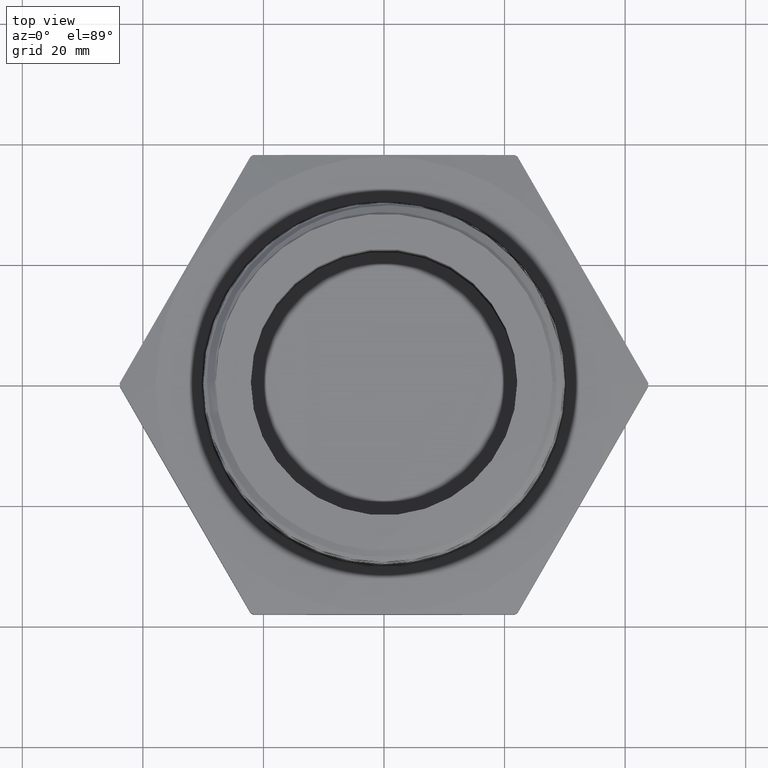
[diagram: clean part render]
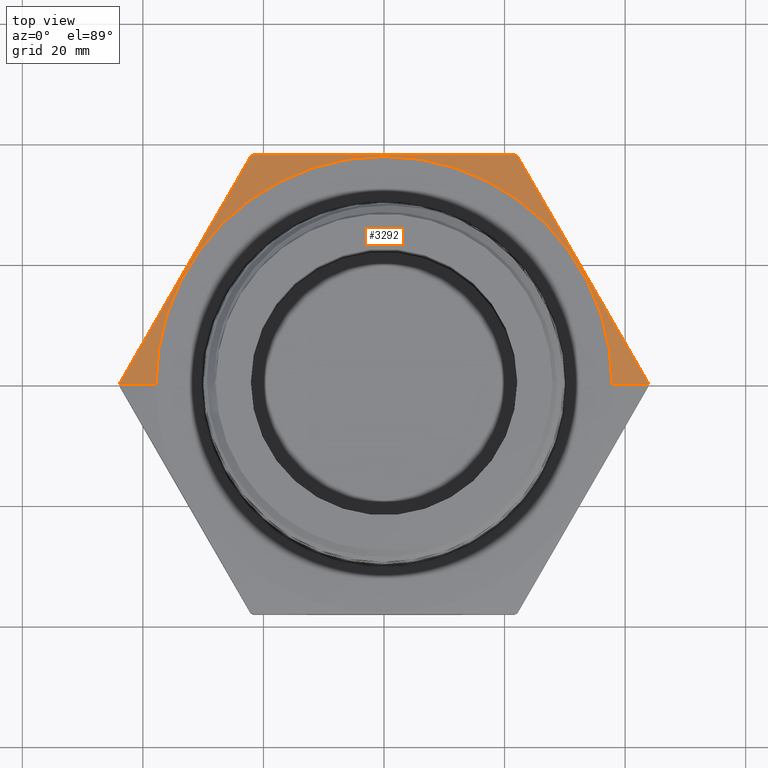
[diagram: same view with one face highlighted and labeled with its STEP entity id]
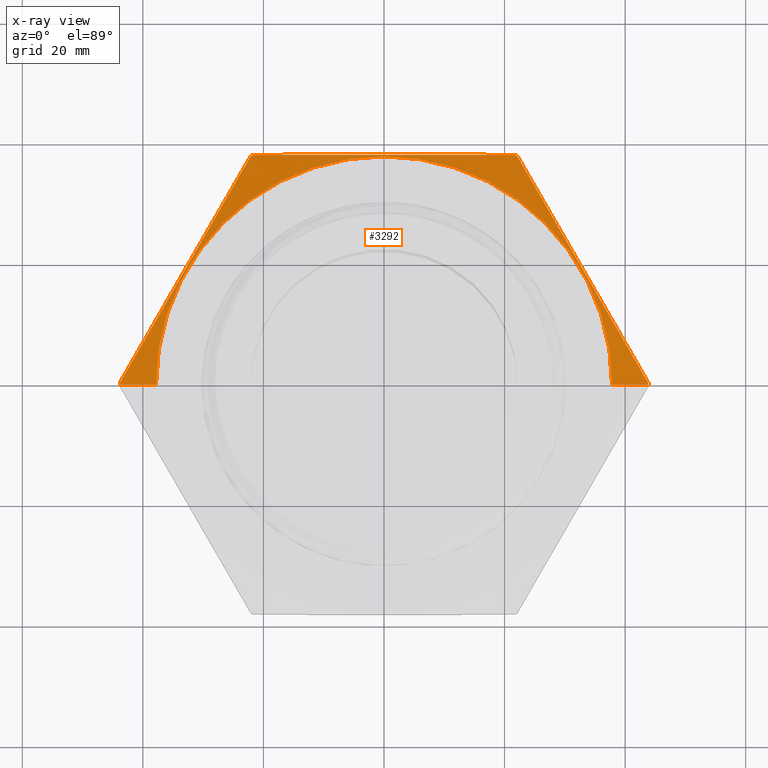
[diagram: x-ray of the same camera — body ghosted, the highlighted face saturated]
A machine part, top view. The second image highlights one B-rep face of the part: STEP entity #3292.
The next image is the same camera in x-ray: the body ghosted, the highlighted face saturated — about 0% of this face is hidden behind the body in this view.
In plain terms, the highlighted conical surface has half-angle 78 deg.
Its self-contained STEP definition (entity closure, byte-faithful):
#195 = VERTEX_POINT ( 'NONE', #895 ) ;
#196 = VERTEX_POINT ( 'NONE', #896 ) ;
#200 = VERTEX_POINT ( 'NONE', #900 ) ;
#202 = VERTEX_POINT ( 'NONE', #902 ) ;
#204 = VERTEX_POINT ( 'NONE', #904 ) ;
#205 = VERTEX_POINT ( 'NONE', #905 ) ;
#206 = VERTEX_POINT ( 'NONE', #906 ) ;
#207 = VERTEX_POINT ( 'NONE', #907 ) ;
#208 = VERTEX_POINT ( 'NONE', #909 ) ;
#209 = VERTEX_POINT ( 'NONE', #911 ) ;
#806 = DIRECTION ( 'NONE',  ( -1.000000000000000000, 0.0000000000000000000, 1.375091271978655600E-016 ) ) ;
#807 = CARTESIAN_POINT ( 'NONE',  ( 4.141455608242866600E-017, 0.0000000000000000000, 0.3299999999999998500 ) ) ;
#808 = DIRECTION ( 'NONE',  ( -1.254986547952384500E-016, -0.0000000000000000000, -1.000000000000000000 ) ) ;
#870 = EDGE_LOOP ( 'NONE', ( #2915, #2916, #2917, #2918, #2919, #2920, #2921, #2922, #2923, #2924 ) ) ;
#895 = CARTESIAN_POINT ( 'NONE',  ( 1.490000000000000400, 1.824723730729556900E-016, 0.3299999999999996300 ) ) ;
#896 = CARTESIAN_POINT ( 'NONE',  ( -1.490000000000000400, 0.0000000000000000000, 0.3300000000000000200 ) ) ;
#900 = CARTESIAN_POINT ( 'NONE',  ( 0.8720570199394855900, 1.489552934367704800, 0.2798258519637287200 ) ) ;
#902 = CARTESIAN_POINT ( 'NONE',  ( -0.8539621714743428300, 1.500000000000000400, 0.2798258519637289400 ) ) ;
#904 = CARTESIAN_POINT ( 'NONE',  ( 0.8539621714743428300, 1.500000000000000400, 0.2798258519637287200 ) ) ;
#905 = CARTESIAN_POINT ( 'NONE',  ( 1.726019191413829900, 0.01044706563229644500, 0.2798258519637286700 ) ) ;
#906 = CARTESIAN_POINT ( 'NONE',  ( 1.726050807568877900, 2.113802596654930500E-016, 0.2798258519637286700 ) ) ;
#907 = CARTESIAN_POINT ( 'NONE',  ( -0.8720570199394877000, 1.489552934367703600, 0.2798258519637289400 ) ) ;
#909 = CARTESIAN_POINT ( 'NONE',  ( -1.726019191413829900, 0.01044706563229740400, 0.2798258519637290600 ) ) ;
#911 = CARTESIAN_POINT ( 'NONE',  ( -1.726050807568878100, 0.0000000000000000000, 0.2798258519637290600 ) ) ;
#1565 = CARTESIAN_POINT ( 'NONE',  ( 4.141455608242866600E-017, 0.0000000000000000000, 0.3299999999999998500 ) ) ;
#1566 = DIRECTION ( 'NONE',  ( -1.254986547952384500E-016, -0.0000000000000000000, -1.000000000000000000 ) ) ;
#1567 = DIRECTION ( 'NONE',  ( -1.000000000000000000, 0.0000000000000000000, 1.375091271978655600E-016 ) ) ;
#1633 = CARTESIAN_POINT ( 'NONE',  ( -1.490000000000000400, 0.0000000000000000000, 0.3300000000000000200 ) ) ;
#1634 = DIRECTION ( 'NONE',  ( -0.9781476007338071300, 0.0000000000000000000, -0.2079116908177526300 ) ) ;
#1635 = DIRECTION ( 'NONE',  ( 0.9781476007338069100, 1.197885328332319900E-016, -0.2079116908177528500 ) ) ;
#1636 = CARTESIAN_POINT ( 'NONE',  ( 1.490000000000000400, 1.824723730729556900E-016, 0.3299999999999996300 ) ) ;
#1637 = CARTESIAN_POINT ( 'NONE',  ( 3.511776799837950400E-017, 0.0000000000000000000, 0.2798258519637288300 ) ) ;
#1638 = DIRECTION ( 'NONE',  ( -1.254986547952384500E-016, -0.0000000000000000000, -1.000000000000000000 ) ) ;
#1639 = DIRECTION ( 'NONE',  ( -1.000000000000000000, 0.0000000000000000000, 1.187036897328664900E-016 ) ) ;
#1640 = CARTESIAN_POINT ( 'NONE',  ( 0.8720570199394855900, 1.489552934367704800, 0.2798258519637287200 ) ) ;
#1641 = CARTESIAN_POINT ( 'NONE',  ( 0.9432205342290145300, 1.366294111973087600, 0.2947932723352763600 ) ) ;
#1645 = CARTESIAN_POINT ( 'NONE',  ( 1.014384048518543100, 1.243035289578469800, 0.3069262541747560500 ) ) ;
#1646 = CARTESIAN_POINT ( 'NONE',  ( 1.156711077097600100, 0.9965176447892351000, 0.3234912303191852500 ) ) ;
#1647 = CARTESIAN_POINT ( 'NONE',  ( 1.299038105676656700, 0.7500000000000002200, 0.3322576384474138500 ) ) ;
#1648 = CARTESIAN_POINT ( 'NONE',  ( 1.441365134255714800, 0.5034823552107656800, 0.3234912303191852000 ) ) ;
#1649 = CARTESIAN_POINT ( 'NONE',  ( 1.583692162834773100, 0.2569647104215312900, 0.3069262541747560500 ) ) ;
#1650 = CARTESIAN_POINT ( 'NONE',  ( 1.654855677124301900, 0.1337058880269140500, 0.2947932723352764700 ) ) ;
#1651 = CARTESIAN_POINT ( 'NONE',  ( 1.726019191413829900, 0.01044706563229644500, 0.2798258519637286700 ) ) ;
#1653 = CARTESIAN_POINT ( 'NONE',  ( 3.511776799837950400E-017, 0.0000000000000000000, 0.2798258519637288300 ) ) ;
#1654 = DIRECTION ( 'NONE',  ( -1.254986547952384500E-016, -0.0000000000000000000, -1.000000000000000000 ) ) ;
#1655 = DIRECTION ( 'NONE',  ( -1.000000000000000000, 0.0000000000000000000, 1.187036897328664900E-016 ) ) ;
#1656 = CARTESIAN_POINT ( 'NONE',  ( -0.8539621714743428300, 1.500000000000000400, 0.2798258519637289400 ) ) ;
#1661 = CARTESIAN_POINT ( 'NONE',  ( 3.511776799837950400E-017, 0.0000000000000000000, 0.2798258519637288300 ) ) ;
#1662 = DIRECTION ( 'NONE',  ( -1.254986547952384500E-016, -0.0000000000000000000, -1.000000000000000000 ) ) ;
#1663 = DIRECTION ( 'NONE',  ( -1.000000000000000000, 0.0000000000000000000, 1.187036897328664900E-016 ) ) ;
#1664 = CARTESIAN_POINT ( 'NONE',  ( -0.7117519578244634300, 1.500000000000000200, 0.2947809878228538300 ) ) ;
#1671 = CARTESIAN_POINT ( 'NONE',  ( -1.654855677124301000, 0.1337058880269144100, 0.2947932723352768000 ) ) ;
#1672 = CARTESIAN_POINT ( 'NONE',  ( -1.726019191413829900, 0.01044706563229740400, 0.2798258519637290600 ) ) ;
#1673 = CARTESIAN_POINT ( 'NONE',  ( -0.5689969644752560500, 1.500000000000000700, 0.3069538100358671900 ) ) ;
#1674 = CARTESIAN_POINT ( 'NONE',  ( -0.2839118235006993800, 1.500000000000000400, 0.3235249394067818400 ) ) ;
#1675 = CARTESIAN_POINT ( 'NONE',  ( -0.1414571205268103900, 1.500000000000000400, 0.3278925167262080600 ) ) ;
#1676 = CARTESIAN_POINT ( 'NONE',  ( 0.1432555711352078400, 1.500000000000000200, 0.3278562374573733600 ) ) ;
#1677 = CARTESIAN_POINT ( 'NONE',  ( 0.2855135913359616600, 1.500000000000000400, 0.3234537860080488600 ) ) ;
#1678 = CARTESIAN_POINT ( 'NONE',  ( 0.5698554409630795000, 1.500000000000000700, 0.3068817661509981000 ) ) ;
#1679 = CARTESIAN_POINT ( 'NONE',  ( 0.7119403687677248200, 1.500000000000000400, 0.2947611741176245400 ) ) ;
#1680 = CARTESIAN_POINT ( 'NONE',  ( 0.8539621714743428300, 1.500000000000000400, 0.2798258519637287200 ) ) ;
#1682 = CARTESIAN_POINT ( 'NONE',  ( -1.583692162834772700, 0.2569647104215314600, 0.3069262541747563900 ) ) ;
#1683 = CARTESIAN_POINT ( 'NONE',  ( -1.441365134255716100, 0.5034823552107657900, 0.3234912303191856400 ) ) ;
#1684 = CARTESIAN_POINT ( 'NONE',  ( -1.299038105676658400, 0.7500000000000007800, 0.3322576384474139600 ) ) ;
#1685 = CARTESIAN_POINT ( 'NONE',  ( -1.156711077097601000, 0.9965176447892345500, 0.3234912303191855300 ) ) ;
#1686 = CARTESIAN_POINT ( 'NONE',  ( -1.014384048518544500, 1.243035289578469100, 0.3069262541747562200 ) ) ;
#1687 = CARTESIAN_POINT ( 'NONE',  ( -0.9432205342290155300, 1.366294111973086300, 0.2947932723352765800 ) ) ;
#1688 = CARTESIAN_POINT ( 'NONE',  ( -0.8720570199394877000, 1.489552934367703600, 0.2798258519637289400 ) ) ;
#1691 = CARTESIAN_POINT ( 'NONE',  ( 3.511776799837950400E-017, 0.0000000000000000000, 0.2798258519637288300 ) ) ;
#1692 = DIRECTION ( 'NONE',  ( -1.254986547952384500E-016, -0.0000000000000000000, -1.000000000000000000 ) ) ;
#1693 = DIRECTION ( 'NONE',  ( -1.000000000000000000, 0.0000000000000000000, 1.187036897328664900E-016 ) ) ;
#2860 = FACE_OUTER_BOUND ( 'NONE', #870, .T. ) ;
#2869 = CONICAL_SURFACE ( 'NONE', #5790, 1.490000000000000400, 1.361356816555583800 ) ;
#2915 = ORIENTED_EDGE ( 'NONE', *, *, #5741, .T. ) ;
#2916 = ORIENTED_EDGE ( 'NONE', *, *, #5758, .T. ) ;
#2917 = ORIENTED_EDGE ( 'NONE', *, *, #5760, .F. ) ;
#2918 = ORIENTED_EDGE ( 'NONE', *, *, #5759, .F. ) ;
#2919 = ORIENTED_EDGE ( 'NONE', *, *, #5756, .F. ) ;
#2920 = ORIENTED_EDGE ( 'NONE', *, *, #5765, .F. ) ;
#2921 = ORIENTED_EDGE ( 'NONE', *, *, #5762, .F. ) ;
#2922 = ORIENTED_EDGE ( 'NONE', *, *, #5766, .F. ) ;
#2923 = ORIENTED_EDGE ( 'NONE', *, *, #5767, .F. ) ;
#2924 = ORIENTED_EDGE ( 'NONE', *, *, #5755, .F. ) ;
#3292 = ADVANCED_FACE ( 'NONE', ( #2860 ), #2869, .T. ) ;
#4156 = CIRCLE ( 'NONE', #5428, 1.490000000000000400 ) ;
#4172 = CIRCLE ( 'NONE', #5435, 1.726050807568878100 ) ;
#4173 = LINE ( 'NONE', #1633, #4174 ) ;
#4174 = VECTOR ( 'NONE', #1634, 39.37007874015748900 ) ;
#4175 = CIRCLE ( 'NONE', #5440, 1.726050807568878100 ) ;
#4176 = LINE ( 'NONE', #1636, #4178 ) ;
#4178 = VECTOR ( 'NONE', #1635, 39.37007874015748100 ) ;
#4179 = CIRCLE ( 'NONE', #5437, 1.726050807568878100 ) ;
#4180 = CIRCLE ( 'NONE', #5439, 1.726050807568878100 ) ;
#5428 = AXIS2_PLACEMENT_3D ( 'NONE', #1565, #1566, #1567 ) ;
#5435 = AXIS2_PLACEMENT_3D ( 'NONE', #1637, #1638, #1639 ) ;
#5437 = AXIS2_PLACEMENT_3D ( 'NONE', #1653, #1654, #1655 ) ;
#5439 = AXIS2_PLACEMENT_3D ( 'NONE', #1661, #1662, #1663 ) ;
#5440 = AXIS2_PLACEMENT_3D ( 'NONE', #1691, #1692, #1693 ) ;
#5741 = EDGE_CURVE ( 'NONE', #196, #195, #4156, .T. ) ;
#5755 = EDGE_CURVE ( 'NONE', #196, #209, #4173, .T. ) ;
#5756 = EDGE_CURVE ( 'NONE', #204, #200, #4172, .T. ) ;
#5758 = EDGE_CURVE ( 'NONE', #195, #206, #4176, .T. ) ;
#5759 = EDGE_CURVE ( 'NONE', #200, #205, #7840, .T. ) ;
#5760 = EDGE_CURVE ( 'NONE', #205, #206, #4179, .T. ) ;
#5762 = EDGE_CURVE ( 'NONE', #207, #202, #4180, .T. ) ;
#5765 = EDGE_CURVE ( 'NONE', #202, #204, #7842, .T. ) ;
#5766 = EDGE_CURVE ( 'NONE', #208, #207, #7843, .T. ) ;
#5767 = EDGE_CURVE ( 'NONE', #209, #208, #4175, .T. ) ;
#5790 = AXIS2_PLACEMENT_3D ( 'NONE', #807, #808, #806 ) ;
#7840 = B_SPLINE_CURVE_WITH_KNOTS ( 'NONE', 3,
 ( #1640, #1641, #1645, #1646, #1647, #1648, #1649, #1650, #1651 ),
 .UNSPECIFIED., .F., .F.,
 ( 4, 2, 1, 2, 4 ),
 ( 1.901761468247925000E-006, 0.01084722133919240200, 0.02169254091691656700, 0.03253786049464072600, 0.04338318007236489200 ),
 .UNSPECIFIED. ) ;
#7842 = B_SPLINE_CURVE_WITH_KNOTS ( 'NONE', 3,
 ( #1656, #1664, #1673, #1674, #1675, #1676, #1677, #1678, #1679, #1680 ),
 .UNSPECIFIED., .F., .F.,
 ( 4, 2, 2, 2, 4 ),
 ( 0.03681967753681141700, 0.04770835183110393900, 0.05859702612539645400, 0.06948570041968897500, 0.08037437471398149700 ),
 .UNSPECIFIED. ) ;
#7843 = B_SPLINE_CURVE_WITH_KNOTS ( 'NONE', 3,
 ( #1672, #1671, #1682, #1683, #1684, #1685, #1686, #1687, #1688 ),
 .UNSPECIFIED., .F., .F.,
 ( 4, 2, 1, 2, 4 ),
 ( 1.901761468389424800E-006, 0.01084722133919253900, 0.02169254091691669200, 0.03253786049464083000, 0.04338318007236496900 ),
 .UNSPECIFIED. ) ;